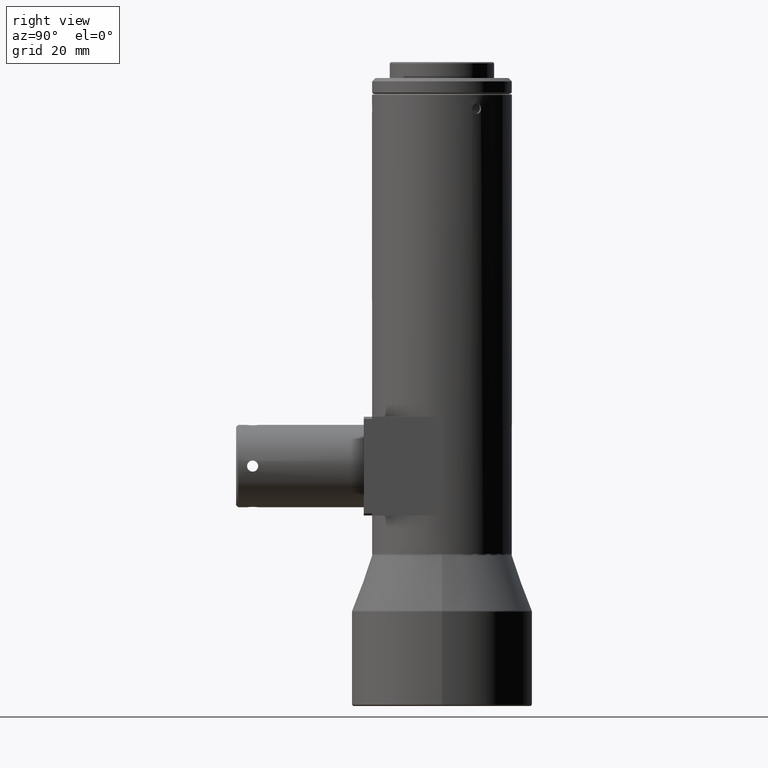
[diagram: clean part render]
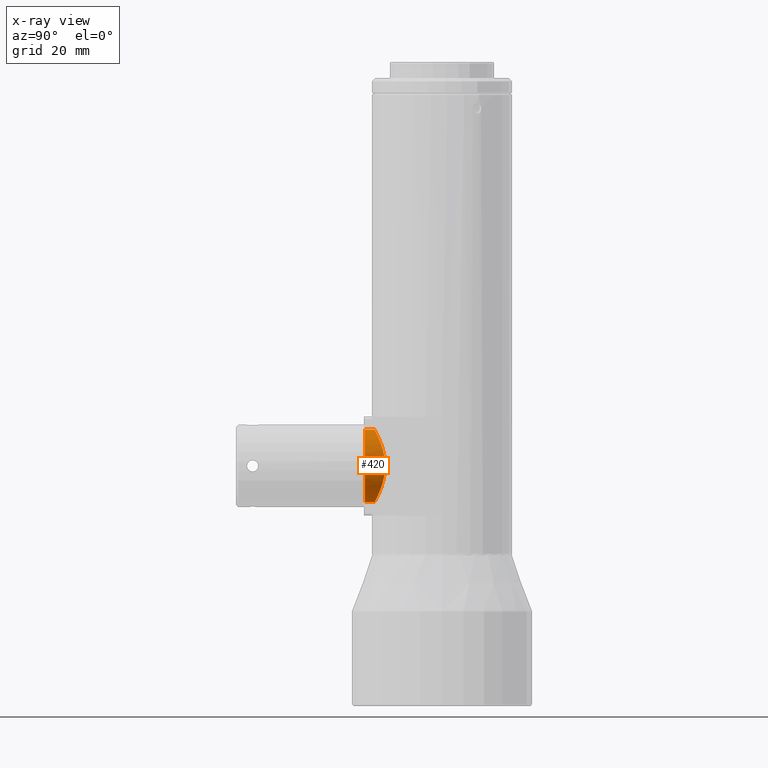
[diagram: x-ray — body ghosted, one internal face saturated and labeled with its STEP entity id]
A machine part, right view, then the same camera in x-ray: the body is ghosted and one INTERNAL B-rep face — a face not visible from any outside direction — is saturated and labeled: STEP entity #420.
In plain terms, the highlighted cylindrical surface (edge-blend (fillet) strip) has radius 8.825 mm, axis along (0, 1, 0).
Its self-contained STEP definition (entity closure, byte-faithful):
#3 = CARTESIAN_POINT ( 'NONE',  ( 6.648864908158237200, -14.98893613505324400, 62.29106358387140600 ) ) ;
#42 = CARTESIAN_POINT ( 'NONE',  ( 8.811365902117032100, -13.82211540375466500, 68.69407908195840700 ) ) ;
#71 = CARTESIAN_POINT ( 'NONE',  ( 0.5944700478268168900, -16.38363698053310500, 76.93124401402242500 ) ) ;
#92 = CARTESIAN_POINT ( 'NONE',  ( 7.917259469824339900, -14.35526000654759000, 72.06270791528413600 ) ) ;
#110 = CARTESIAN_POINT ( 'NONE',  ( 3.960461066562430300E-014, -18.70000000000003100, 59.29630850271085100 ) ) ;
#360 = CIRCLE ( 'NONE', #4527, 8.824999999999999300 ) ;
#420 = ADVANCED_FACE ( 'NONE', ( #3015 ), #2735, .F. ) ;
#495 = CARTESIAN_POINT ( 'NONE',  ( 6.648112328580679400, -14.98929699903427300, 73.95251878436025100 ) ) ;
#503 = VERTEX_POINT ( 'NONE', #110 ) ;
#517 = CARTESIAN_POINT ( 'NONE',  ( 7.645143999526014900, -14.50401852027757800, 72.56591249003652400 ) ) ;
#788 = CARTESIAN_POINT ( 'NONE',  ( 0.2937660843289761600, -16.39176184365495500, 59.29630850271083600 ) ) ;
#866 = ORIENTED_EDGE ( 'NONE', *, *, #4513, .F. ) ;
#879 = CARTESIAN_POINT ( 'NONE',  ( 3.950910851773586700, -15.91065141493049500, 76.01775793235894700 ) ) ;
#939 = CARTESIAN_POINT ( 'NONE',  ( 2.897621150675187400, -16.14270329701457700, 76.47682281144926700 ) ) ;
#1206 = EDGE_CURVE ( 'NONE', #503, #2228, #1786, .T. ) ;
#1274 = CARTESIAN_POINT ( 'NONE',  ( 8.026065349673940500, -14.29294706509914200, 64.44104376129571700 ) ) ;
#1299 = VERTEX_POINT ( 'NONE', #2278 ) ;
#1327 = DIRECTION ( 'NONE',  ( 7.927686285214012400E-016, -7.862769296212157100E-016, 1.000000000000000000 ) ) ;
#1382 = CARTESIAN_POINT ( 'NONE',  ( 5.251162037626313100E-014, -16.39176184365495500, 76.94630850271083500 ) ) ;
#1386 = LINE ( 'NONE', #4681, #3631 ) ;
#1688 = CARTESIAN_POINT ( 'NONE',  ( 7.632701727143961000, -14.50707801866911400, 63.68242133405473000 ) ) ;
#1708 = CARTESIAN_POINT ( 'NONE',  ( 2.325229460210512100, -16.22844620021553700, 59.60317477136062800 ) ) ;
#1765 = CARTESIAN_POINT ( 'NONE',  ( 2.881292787112887900, -16.13899965892719400, 59.77484540851769200 ) ) ;
#1786 = LINE ( 'NONE', #2638, #4618 ) ;
#1848 = CARTESIAN_POINT ( 'NONE',  ( 4.457473520157292600, -15.77623069123891100, 75.74328593450295000 ) ) ;
#1876 = ORIENTED_EDGE ( 'NONE', *, *, #1206, .F. ) ;
#1983 = B_SPLINE_CURVE_WITH_KNOTS ( 'NONE', 3,
 ( #3986, #788, #3040, #5299, #4414, #4858, #1708, #1765, #3524, #4798, #3950, #2205, #2628, #3, #3916, #2163, #1688, #5246, #1274, #2612, #5315, #4935, #4954, #4910, #42, #3155, #5373, #2240, #4062, #92, #517, #5349, #495, #3558, #2299, #2318, #1848, #879, #2721, #939, #2704, #2743, #4452, #71, #3192, #1382 ),
 .UNSPECIFIED., .F., .F.,
 ( 4, 2, 2, 2, 2, 2, 2, 2, 2, 2, 2, 2, 2, 2, 2, 2, 2, 2, 2, 2, 2, 2, 4 ),
 ( 0.02815992316567045600, 0.02903791817166429700, 0.02991591317765813400, 0.03079390818365197000, 0.03167190318964580700, 0.03342789320163348800, 0.03518388321362116200, 0.03693987322560883500, 0.03781786823160265800, 0.03869586323759648100, 0.04045185324958416200, 0.04220784326157184200, 0.04308583826756570700, 0.04396383327355957200, 0.04571982328554732900, 0.04747581329753509900, 0.04923180330952286300, 0.05098779332151062700, 0.05186578832750450600, 0.05274378333349839100, 0.05449977334548616900, 0.05537776835148006100, 0.05625576335747395400 ),
 .UNSPECIFIED. ) ;
#2156 = DIRECTION ( 'NONE',  ( 2.775557561561829800E-017, 1.000000000000000000, 6.540723362686794100E-016 ) ) ;
#2163 = CARTESIAN_POINT ( 'NONE',  ( 7.484170806714909800, -14.58453488550035500, 63.43631576565175600 ) ) ;
#2184 = CARTESIAN_POINT ( 'NONE',  ( 3.960000488143015600E-014, -16.39176184365495800, 59.29630850271084300 ) ) ;
#2205 = CARTESIAN_POINT ( 'NONE',  ( 5.408596291206725600, -15.48167790188537700, 61.12470430859644200 ) ) ;
#2228 = VERTEX_POINT ( 'NONE', #2184 ) ;
#2240 = CARTESIAN_POINT ( 'NONE',  ( 8.535655125360042600, -13.99467634952461600, 70.43774013021847200 ) ) ;
#2278 = CARTESIAN_POINT ( 'NONE',  ( 5.244755389757584500E-014, -18.70000000000004500, 76.94630850271084900 ) ) ;
#2299 = CARTESIAN_POINT ( 'NONE',  ( 5.414653207226688600, -15.47958303060229400, 75.11331043169745700 ) ) ;
#2318 = CARTESIAN_POINT ( 'NONE',  ( 4.705141012190424000, -15.70391767517554400, 75.59283825824115900 ) ) ;
#2533 = ORIENTED_EDGE ( 'NONE', *, *, #4624, .T. ) ;
#2612 = CARTESIAN_POINT ( 'NONE',  ( 8.357585938852496500, -14.10338368864854700, 65.23043034352576800 ) ) ;
#2623 = DIRECTION ( 'NONE',  ( 7.927686285214012400E-016, -7.862769296212157100E-016, 1.000000000000000000 ) ) ;
#2628 = CARTESIAN_POINT ( 'NONE',  ( 5.852006954133047500, -15.31762467344140600, 61.49158942952458100 ) ) ;
#2638 = CARTESIAN_POINT ( 'NONE',  ( 3.866718888765180100E-014, -50.00000000000002100, 59.29630850271082200 ) ) ;
#2704 = CARTESIAN_POINT ( 'NONE',  ( 2.345179439599494500, -16.23354156690922400, 76.64941880172322900 ) ) ;
#2721 = CARTESIAN_POINT ( 'NONE',  ( 3.691918921415063600, -15.97288002988489500, 76.14208841190865900 ) ) ;
#2735 = CYLINDRICAL_SURFACE ( 'NONE', #3327, 8.824999999999999300 ) ;
#2743 = CARTESIAN_POINT ( 'NONE',  ( 1.478347567306188100, -16.32754774381901100, 76.82659943347532300 ) ) ;
#3015 = FACE_OUTER_BOUND ( 'NONE', #3863, .T. ) ;
#3040 = CARTESIAN_POINT ( 'NONE',  ( 0.5906948959430246000, -16.38377487832774500, 59.31111683221052300 ) ) ;
#3155 = CARTESIAN_POINT ( 'NONE',  ( 8.753185612087087000, -13.85903261184035500, 69.28319353910383400 ) ) ;
#3192 = CARTESIAN_POINT ( 'NONE',  ( 0.2972462930892063600, -16.39176184365495500, 76.94630850271083500 ) ) ;
#3215 = DIRECTION ( 'NONE',  ( 2.775557561561829800E-017, 1.000000000000000000, 6.540723362686794100E-016 ) ) ;
#3327 = AXIS2_PLACEMENT_3D ( 'NONE', #3977, #2156, #2623 ) ;
#3344 = CARTESIAN_POINT ( 'NONE',  ( 5.251162037626313100E-014, -16.39176184365495500, 76.94630850271083500 ) ) ;
#3520 = CARTESIAN_POINT ( 'NONE',  ( 4.545137075087448000E-014, -18.70000000000003800, 68.12130850271084600 ) ) ;
#3524 = CARTESIAN_POINT ( 'NONE',  ( 3.156476995946433800, -16.08731552287743900, 59.87497847942599100 ) ) ;
#3556 = DIRECTION ( 'NONE',  ( 2.775557561561829800E-017, 1.000000000000000000, 6.540723362686794100E-016 ) ) ;
#3558 = CARTESIAN_POINT ( 'NONE',  ( 5.849481043620035500, -15.31861591590487300, 74.75335060168531200 ) ) ;
#3631 = VECTOR ( 'NONE', #3215, 1000.000000000000000 ) ;
#3863 = EDGE_LOOP ( 'NONE', ( #1876, #5421, #2533, #866 ) ) ;
#3916 = CARTESIAN_POINT ( 'NONE',  ( 7.006983834072080700, -14.82290425299937600, 62.72610869264166700 ) ) ;
#3950 = CARTESIAN_POINT ( 'NONE',  ( 4.463814121300782000, -15.78003890963063900, 60.48719116140478700 ) ) ;
#3977 = CARTESIAN_POINT ( 'NONE',  ( 4.458262123410562400E-014, -50.00000000000002800, 68.12130850271081800 ) ) ;
#3986 = CARTESIAN_POINT ( 'NONE',  ( 3.960000488143015600E-014, -16.39176184365495800, 59.29630850271084300 ) ) ;
#4062 = CARTESIAN_POINT ( 'NONE',  ( 8.365341593318339300, -14.09884915144516500, 70.99161978705865300 ) ) ;
#4414 = CARTESIAN_POINT ( 'NONE',  ( 1.470637881287354600, -16.32819559421776700, 59.41480694970913800 ) ) ;
#4452 = CARTESIAN_POINT ( 'NONE',  ( 1.183851838665719700, -16.35161919113036800, 76.87155725205046500 ) ) ;
#4513 = EDGE_CURVE ( 'NONE', #2228, #5180, #1983, .T. ) ;
#4527 = AXIS2_PLACEMENT_3D ( 'NONE', #3520, #3556, #1327 ) ;
#4618 = VECTOR ( 'NONE', #5308, 1000.000000000000000 ) ;
#4624 = EDGE_CURVE ( 'NONE', #1299, #5180, #1386, .T. ) ;
#4681 = CARTESIAN_POINT ( 'NONE',  ( 5.157880438080698900E-014, -50.00000000000003600, 76.94630850271082100 ) ) ;
#4798 = CARTESIAN_POINT ( 'NONE',  ( 3.961061240671290400, -15.91542320720855000, 60.21375879606215900 ) ) ;
#4847 = EDGE_CURVE ( 'NONE', #1299, #503, #360, .T. ) ;
#4858 = CARTESIAN_POINT ( 'NONE',  ( 2.043136160344527500, -16.26647908341576000, 59.53110828964297200 ) ) ;
#4910 = CARTESIAN_POINT ( 'NONE',  ( 8.825442204820438600, -13.81308895638967400, 68.40042866656868600 ) ) ;
#4935 = CARTESIAN_POINT ( 'NONE',  ( 8.765495170319649500, -13.85190068819760300, 66.94010434718012400 ) ) ;
#4954 = CARTESIAN_POINT ( 'NONE',  ( 8.824083931866145000, -13.81395671982197900, 67.52212533424679500 ) ) ;
#5180 = VERTEX_POINT ( 'NONE', #3344 ) ;
#5246 = CARTESIAN_POINT ( 'NONE',  ( 7.903210744611199900, -14.36150090420778900, 64.18416297862005100 ) ) ;
#5299 = CARTESIAN_POINT ( 'NONE',  ( 1.180234027714346800, -16.35188207405012100, 59.37056879849889400 ) ) ;
#5308 = DIRECTION ( 'NONE',  ( 2.775557561561829800E-017, 1.000000000000000000, 6.540723362686794100E-016 ) ) ;
#5315 = CARTESIAN_POINT ( 'NONE',  ( 8.530059608523537000, -13.99811206311842000, 65.78309723916440500 ) ) ;
#5349 = CARTESIAN_POINT ( 'NONE',  ( 7.012846595247284900, -14.82007971103975300, 73.50858183986093800 ) ) ;
#5373 = CARTESIAN_POINT ( 'NONE',  ( 8.709032893748347000, -13.88694465844425700, 69.57699761155612400 ) ) ;
#5421 = ORIENTED_EDGE ( 'NONE', *, *, #4847, .F. ) ;